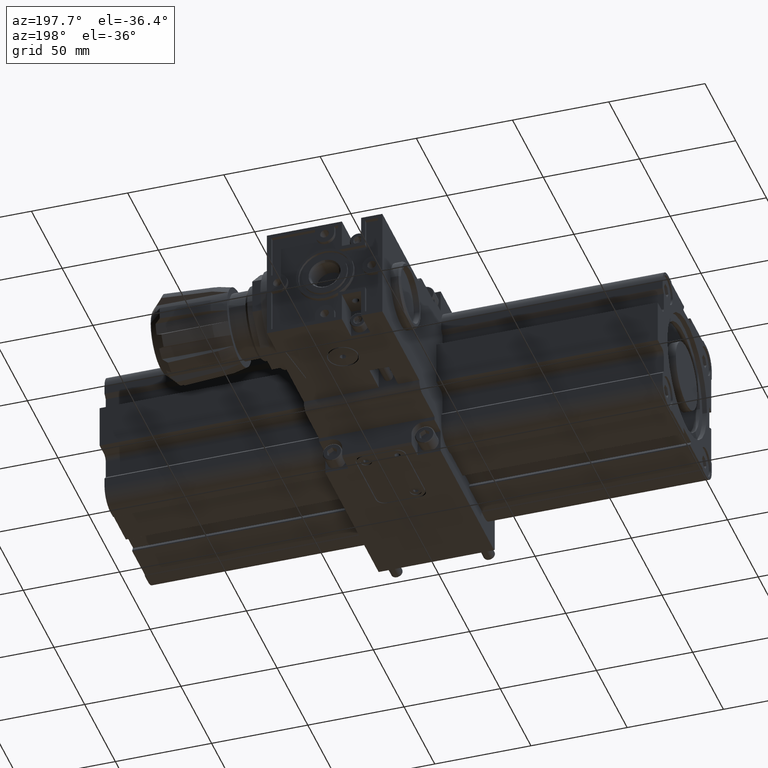
[diagram: clean part render]
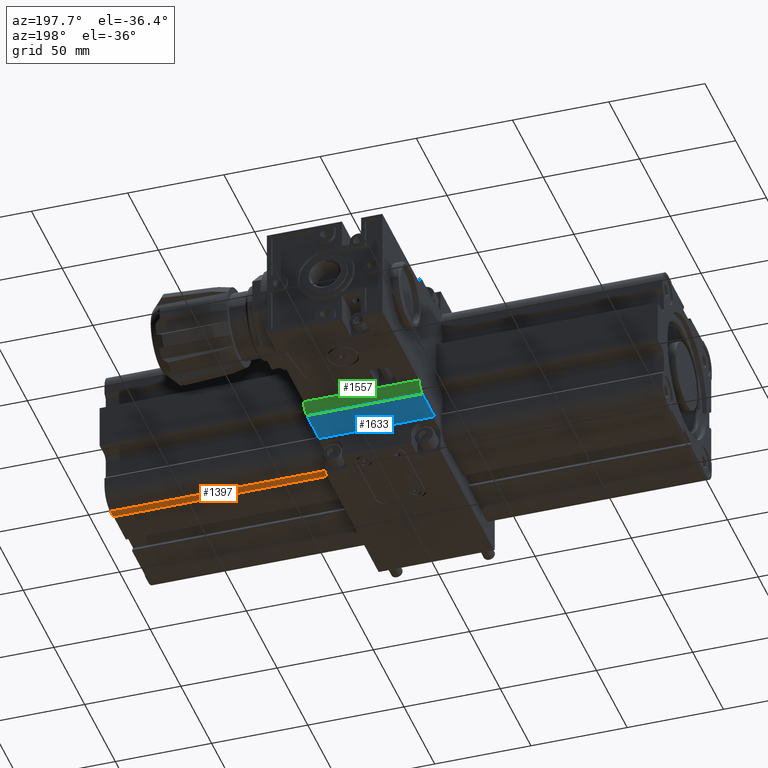
[diagram: same view with three faces highlighted in distinct colors, each labeled with its STEP entity id]
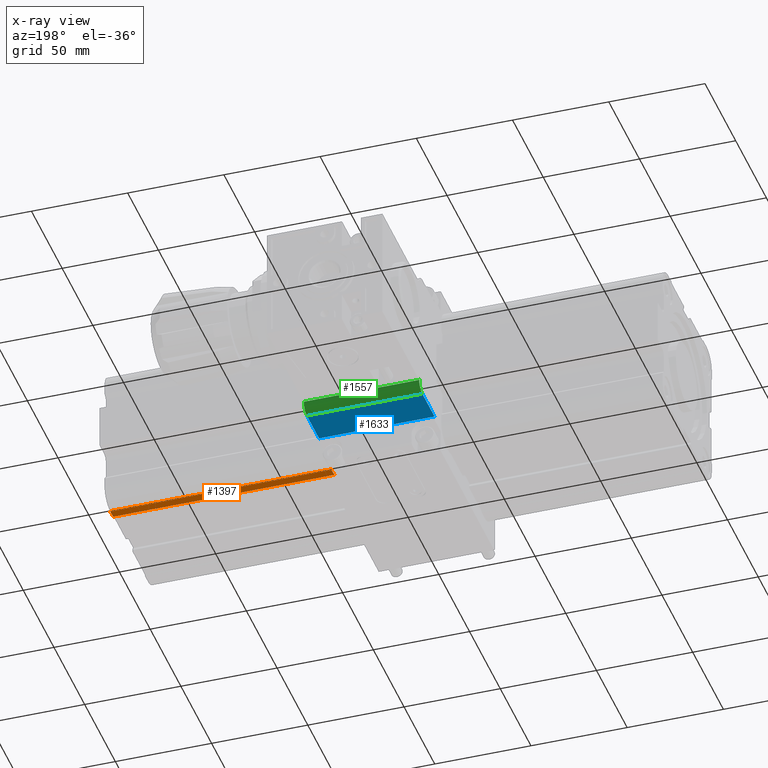
[diagram: x-ray of the same camera — body ghosted, the three highlighted faces saturated]
A machine part, auxiliary view with three faces highlighted in distinct colors.
The next image is the same camera in x-ray (body ghosted, the three faces saturated) — at least one of them is partly hidden behind the body in this view.
Their STEP definitions:

[orange] entity #1397 — the highlighted planar face has unit normal (0, 0, 1).
#1397 = ADVANCED_FACE( '', ( #3218 ), #3219, .F. );
#3218 = FACE_OUTER_BOUND( '', #5601, .T. );
#3219 = PLANE( '', #5602 );
#5601 = EDGE_LOOP( '', ( #9117, #9118, #9119, #9120 ) );
#5602 = AXIS2_PLACEMENT_3D( '', #9121, #9122, #9123 );
#9117 = ORIENTED_EDGE( '', *, *, #14269, .T. );
#9118 = ORIENTED_EDGE( '', *, *, #13759, .F. );
#9119 = ORIENTED_EDGE( '', *, *, #14270, .F. );
#9120 = ORIENTED_EDGE( '', *, *, #13364, .T. );
#9121 = CARTESIAN_POINT( '', ( 145.000000000000, 26.2071067811865, -40.0000000000000 ) );
#9122 = DIRECTION( '', ( 0.000000000000000, 0.000000000000000, 1.00000000000000 ) );
#9123 = DIRECTION( '', ( 1.00000000000000, 0.000000000000000, -0.000000000000000 ) );
#13364 = EDGE_CURVE( '', #15810, #15808, #15811, .T. );
#13759 = EDGE_CURVE( '', #16482, #16477, #16484, .T. );
#14269 = EDGE_CURVE( '', #15808, #16477, #17299, .T. );
#14270 = EDGE_CURVE( '', #15810, #16482, #17300, .T. );
#15808 = VERTEX_POINT( '', #19357 );
#15810 = VERTEX_POINT( '', #19359 );
#15811 = LINE( '', #19360, #19361 );
#16477 = VERTEX_POINT( '', #20293 );
#16482 = VERTEX_POINT( '', #20299 );
#16484 = LINE( '', #20301, #20302 );
#17299 = LINE( '', #21432, #21433 );
#17300 = LINE( '', #21434, #21435 );
#19357 = CARTESIAN_POINT( '', ( 30.0000000000000, 26.2071067811865, -40.0000000000000 ) );
#19359 = CARTESIAN_POINT( '', ( 145.000000000000, 26.2071067811865, -40.0000000000000 ) );
#19360 = CARTESIAN_POINT( '', ( 145.000000000000, 26.2071067811865, -40.0000000000000 ) );
#19361 = VECTOR( '', #23901, 1000.00000000000 );
#20293 = CARTESIAN_POINT( '', ( 30.0000000000000, 31.0000000000000, -40.0000000000000 ) );
#20299 = CARTESIAN_POINT( '', ( 145.000000000000, 31.0000000000000, -40.0000000000000 ) );
#20301 = CARTESIAN_POINT( '', ( 145.000000000000, 31.0000000000000, -40.0000000000000 ) );
#20302 = VECTOR( '', #24337, 1000.00000000000 );
#21432 = CARTESIAN_POINT( '', ( 30.0000000000000, 26.2071067811865, -40.0000000000000 ) );
#21433 = VECTOR( '', #24900, 1000.00000000000 );
#21434 = CARTESIAN_POINT( '', ( 145.000000000000, 26.2071067811865, -40.0000000000000 ) );
#21435 = VECTOR( '', #24901, 1000.00000000000 );
#23901 = DIRECTION( '', ( -1.00000000000000, -0.000000000000000, -0.000000000000000 ) );
#24337 = DIRECTION( '', ( -1.00000000000000, -0.000000000000000, -0.000000000000000 ) );
#24900 = DIRECTION( '', ( 0.000000000000000, 1.00000000000000, 0.000000000000000 ) );
#24901 = DIRECTION( '', ( 0.000000000000000, 1.00000000000000, 0.000000000000000 ) );

[blue] entity #1633 — the highlighted planar face has unit normal (0, 0, 1).
#1633 = ADVANCED_FACE( '', ( #3608 ), #3609, .F. );
#3608 = FACE_OUTER_BOUND( '', #5991, .T. );
#3609 = PLANE( '', #5992 );
#5991 = EDGE_LOOP( '', ( #10077, #10078, #10079, #10080 ) );
#5992 = AXIS2_PLACEMENT_3D( '', #10081, #10082, #10083 );
#10077 = ORIENTED_EDGE( '', *, *, #13769, .T. );
#10078 = ORIENTED_EDGE( '', *, *, #14548, .F. );
#10079 = ORIENTED_EDGE( '', *, *, #14687, .F. );
#10080 = ORIENTED_EDGE( '', *, *, #14688, .T. );
#10081 = CARTESIAN_POINT( '', ( 30.0000000000000, 0.000000000000000, -35.0000000000000 ) );
#10082 = DIRECTION( '', ( 0.000000000000000, 0.000000000000000, 1.00000000000000 ) );
#10083 = DIRECTION( '', ( 1.00000000000000, 0.000000000000000, -0.000000000000000 ) );
#13769 = EDGE_CURVE( '', #16502, #16500, #16503, .T. );
#14548 = EDGE_CURVE( '', #17709, #16500, #17711, .T. );
#14687 = EDGE_CURVE( '', #17909, #17709, #17910, .T. );
#14688 = EDGE_CURVE( '', #17909, #16502, #17911, .T. );
#16500 = VERTEX_POINT( '', #20323 );
#16502 = VERTEX_POINT( '', #20325 );
#16503 = LINE( '', #20326, #20327 );
#17709 = VERTEX_POINT( '', #22002 );
#17711 = LINE( '', #22004, #22005 );
#17909 = VERTEX_POINT( '', #22284 );
#17910 = LINE( '', #22285, #22286 );
#17911 = LINE( '', #22287, #22288 );
#20323 = CARTESIAN_POINT( '', ( -30.0000000000000, 20.0000000000000, -35.0000000000000 ) );
#20325 = CARTESIAN_POINT( '', ( -30.0000000000000, 0.000000000000000, -35.0000000000000 ) );
#20326 = CARTESIAN_POINT( '', ( -30.0000000000000, 0.000000000000000, -35.0000000000000 ) );
#20327 = VECTOR( '', #24349, 1000.00000000000 );
#22002 = CARTESIAN_POINT( '', ( 30.0000000000000, 20.0000000000000, -35.0000000000000 ) );
#22004 = CARTESIAN_POINT( '', ( 30.0000000000000, 20.0000000000000, -35.0000000000000 ) );
#22005 = VECTOR( '', #25215, 1000.00000000000 );
#22284 = CARTESIAN_POINT( '', ( 30.0000000000000, 0.000000000000000, -35.0000000000000 ) );
#22285 = CARTESIAN_POINT( '', ( 30.0000000000000, 0.000000000000000, -35.0000000000000 ) );
#22286 = VECTOR( '', #25372, 1000.00000000000 );
#22287 = CARTESIAN_POINT( '', ( 30.0000000000000, 0.000000000000000, -35.0000000000000 ) );
#22288 = VECTOR( '', #25373, 1000.00000000000 );
#24349 = DIRECTION( '', ( 0.000000000000000, 1.00000000000000, 0.000000000000000 ) );
#25215 = DIRECTION( '', ( -1.00000000000000, -0.000000000000000, -0.000000000000000 ) );
#25372 = DIRECTION( '', ( 0.000000000000000, 1.00000000000000, 0.000000000000000 ) );
#25373 = DIRECTION( '', ( -1.00000000000000, -0.000000000000000, -0.000000000000000 ) );

[green] entity #1557 — the highlighted cylindrical surface (edge-blend (fillet) strip) has radius 5 mm, axis along (1, 0, 0).
#1557 = ADVANCED_FACE( '', ( #3482 ), #3483, .T. );
#3482 = FACE_OUTER_BOUND( '', #5865, .T. );
#3483 = CYLINDRICAL_SURFACE( '', #5866, 5.00000000000000 );
#5865 = EDGE_LOOP( '', ( #9744, #9745, #9746, #9747 ) );
#5866 = AXIS2_PLACEMENT_3D( '', #9748, #9749, #9750 );
#9744 = ORIENTED_EDGE( '', *, *, #13768, .T. );
#9745 = ORIENTED_EDGE( '', *, *, #14546, .F. );
#9746 = ORIENTED_EDGE( '', *, *, #14547, .F. );
#9747 = ORIENTED_EDGE( '', *, *, #14548, .T. );
#9748 = CARTESIAN_POINT( '', ( 30.0000000000000, 20.0000000000000, -30.0000000000000 ) );
#9749 = DIRECTION( '', ( 1.00000000000000, -0.000000000000000, -0.000000000000000 ) );
#9750 = DIRECTION( '', ( 0.000000000000000, 0.000000000000000, 1.00000000000000 ) );
#13768 = EDGE_CURVE( '', #16500, #16498, #16501, .T. );
#14546 = EDGE_CURVE( '', #17707, #16498, #17708, .T. );
#14547 = EDGE_CURVE( '', #17709, #17707, #17710, .T. );
#14548 = EDGE_CURVE( '', #17709, #16500, #17711, .T. );
#16498 = VERTEX_POINT( '', #20320 );
#16500 = VERTEX_POINT( '', #20323 );
#16501 = CIRCLE( '', #20324, 5.00000000000000 );
#17707 = VERTEX_POINT( '', #21999 );
#17708 = LINE( '', #22000, #22001 );
#17709 = VERTEX_POINT( '', #22002 );
#17710 = CIRCLE( '', #22003, 5.00000000000000 );
#17711 = LINE( '', #22004, #22005 );
#20320 = CARTESIAN_POINT( '', ( -30.0000000000000, 25.0000000000000, -30.0000000000000 ) );
#20323 = CARTESIAN_POINT( '', ( -30.0000000000000, 20.0000000000000, -35.0000000000000 ) );
#20324 = AXIS2_PLACEMENT_3D( '', #24346, #24347, #24348 );
#21999 = CARTESIAN_POINT( '', ( 30.0000000000000, 25.0000000000000, -30.0000000000000 ) );
#22000 = CARTESIAN_POINT( '', ( 30.0000000000000, 25.0000000000000, -30.0000000000000 ) );
#22001 = VECTOR( '', #25211, 1000.00000000000 );
#22002 = CARTESIAN_POINT( '', ( 30.0000000000000, 20.0000000000000, -35.0000000000000 ) );
#22003 = AXIS2_PLACEMENT_3D( '', #25212, #25213, #25214 );
#22004 = CARTESIAN_POINT( '', ( 30.0000000000000, 20.0000000000000, -35.0000000000000 ) );
#22005 = VECTOR( '', #25215, 1000.00000000000 );
#24346 = CARTESIAN_POINT( '', ( -30.0000000000000, 20.0000000000000, -30.0000000000000 ) );
#24347 = DIRECTION( '', ( 1.00000000000000, 0.000000000000000, 0.000000000000000 ) );
#24348 = DIRECTION( '', ( 0.000000000000000, 0.000000000000000, -1.00000000000000 ) );
#25211 = DIRECTION( '', ( -1.00000000000000, -0.000000000000000, -0.000000000000000 ) );
#25212 = CARTESIAN_POINT( '', ( 30.0000000000000, 20.0000000000000, -30.0000000000000 ) );
#25213 = DIRECTION( '', ( 1.00000000000000, 0.000000000000000, 0.000000000000000 ) );
#25214 = DIRECTION( '', ( 0.000000000000000, 0.000000000000000, -1.00000000000000 ) );
#25215 = DIRECTION( '', ( -1.00000000000000, -0.000000000000000, -0.000000000000000 ) );